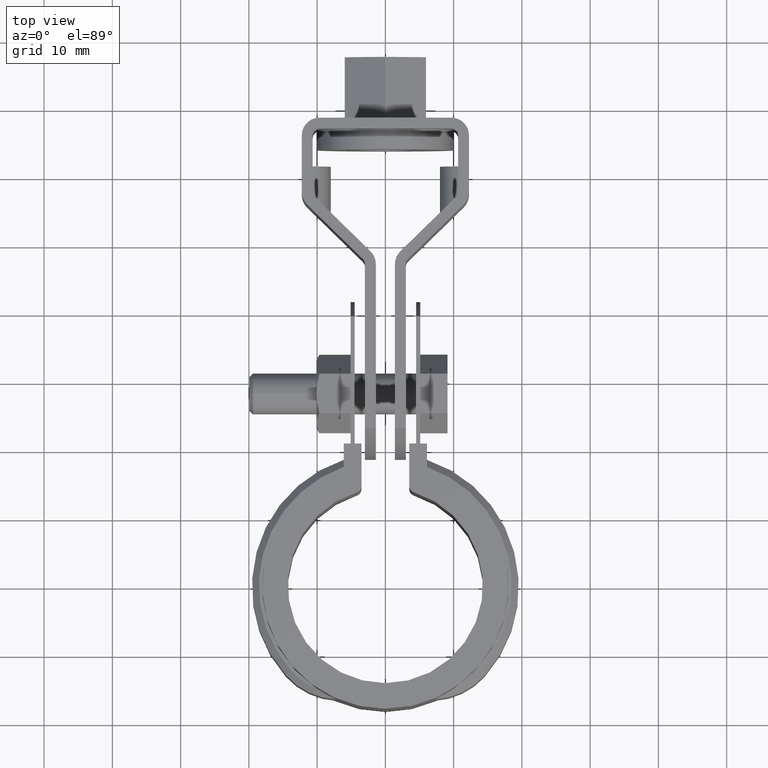
[diagram: clean part render]
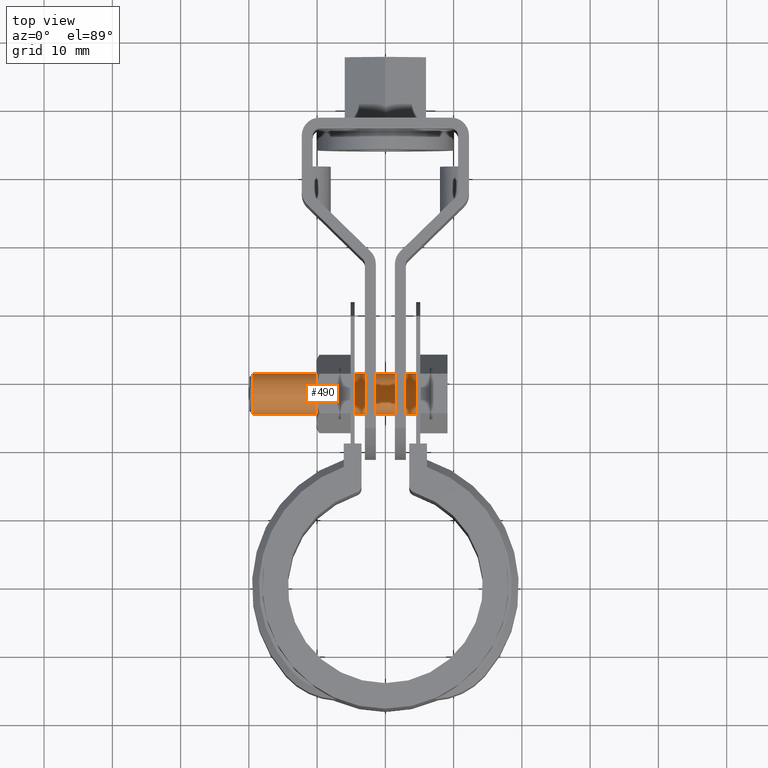
[diagram: same view with one face highlighted and labeled with its STEP entity id]
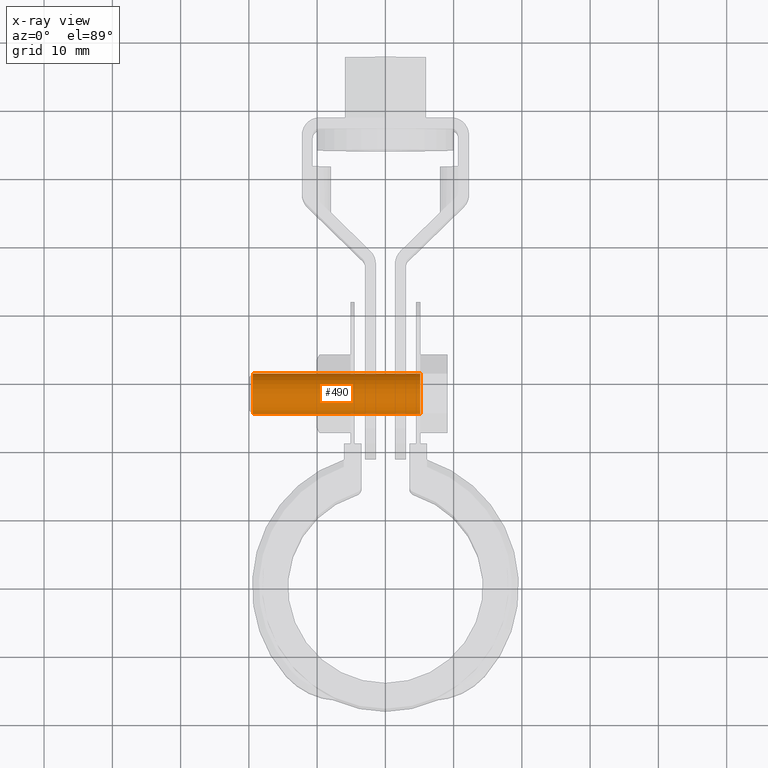
[diagram: x-ray of the same camera — body ghosted, the highlighted face saturated]
A machine part, top view. The second image highlights one B-rep face of the part: STEP entity #490.
The next image is the same camera in x-ray: the body ghosted, the highlighted face saturated — about 1% of this face is hidden behind the body in this view.
In plain terms, the highlighted cylindrical surface (bore or boss wall) has radius 3 mm, axis along (1, -0, 0).
Its self-contained STEP definition (entity closure, byte-faithful):
#490 = ADVANCED_FACE( '', ( #895, #896 ), #897, .T. );
#895 = FACE_OUTER_BOUND( '', #1777, .T. );
#896 = FACE_OUTER_BOUND( '', #1778, .T. );
#897 = CYLINDRICAL_SURFACE( '', #1779, 3.00000000000000 );
#1777 = EDGE_LOOP( '', ( #4406 ) );
#1778 = EDGE_LOOP( '', ( #4407 ) );
#1779 = AXIS2_PLACEMENT_3D( '', #4408, #4409, #4410 );
#4406 = ORIENTED_EDGE( '', *, *, #5140, .T. );
#4407 = ORIENTED_EDGE( '', *, *, #5134, .F. );
#4408 = CARTESIAN_POINT( '', ( 12.8770244734530, 28.3219465658192, -12.5000000000000 ) );
#4409 = DIRECTION( '', ( 1.00000000000000, -2.01076468338595E-087, 0.000000000000000 ) );
#4410 = DIRECTION( '', ( 0.000000000000000, 0.000000000000000, 1.00000000000000 ) );
#5134 = EDGE_CURVE( '', #6045, #6045, #6046, .F. );
#5140 = EDGE_CURVE( '', #6055, #6055, #6056, .T. );
#6045 = VERTEX_POINT( '', #8677 );
#6046 = CIRCLE( '', #8678, 3.00000000000000 );
#6055 = VERTEX_POINT( '', #8692 );
#6056 = CIRCLE( '', #8693, 3.00000000000000 );
#8677 = CARTESIAN_POINT( '', ( 5.10000000000001, 28.3219465658192, -9.50000000000003 ) );
#8678 = AXIS2_PLACEMENT_3D( '', #9537, #9538, #9539 );
#8692 = CARTESIAN_POINT( '', ( -19.4000000000000, 28.3219465658192, -15.5000000000000 ) );
#8693 = AXIS2_PLACEMENT_3D( '', #9545, #9546, #9547 );
#9537 = CARTESIAN_POINT( '', ( 5.10000000000001, 28.3219465658192, -12.5000000000000 ) );
#9538 = DIRECTION( '', ( -1.00000000000000, 2.01076468338595E-087, 0.000000000000000 ) );
#9539 = DIRECTION( '', ( 0.000000000000000, 0.000000000000000, 1.00000000000000 ) );
#9545 = CARTESIAN_POINT( '', ( -19.4000000000000, 28.3219465658192, -12.5000000000000 ) );
#9546 = DIRECTION( '', ( 1.00000000000000, -2.01076468338595E-087, 0.000000000000000 ) );
#9547 = DIRECTION( '', ( 0.000000000000000, 0.000000000000000, -1.00000000000000 ) );